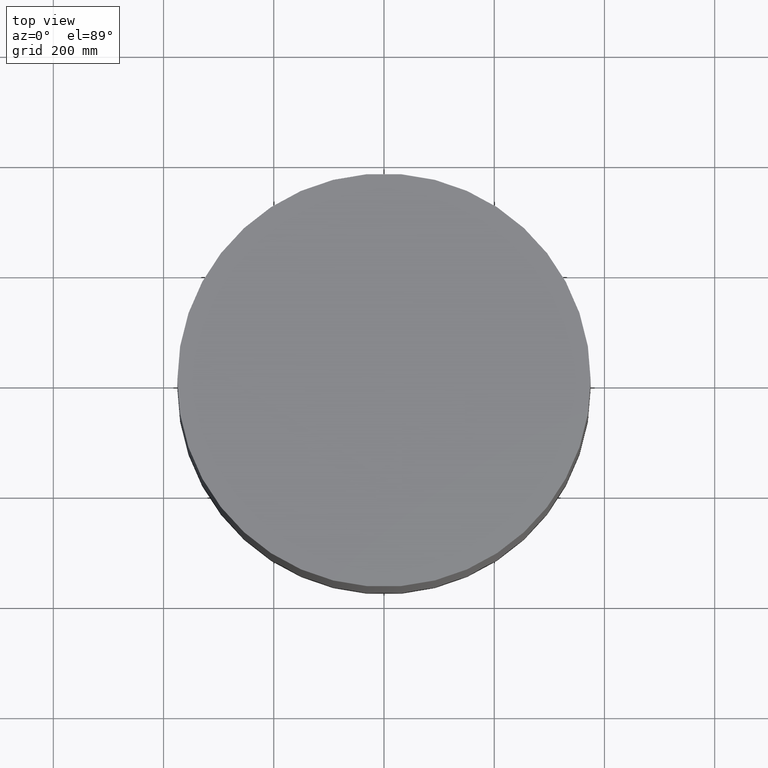
[diagram: clean part render]
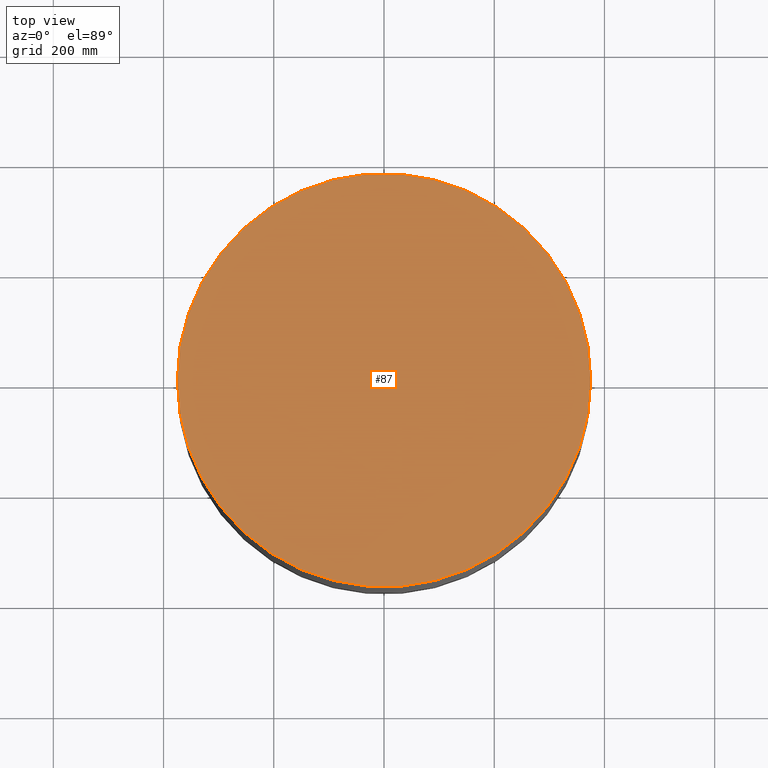
[diagram: same view with one face highlighted and labeled with its STEP entity id]
A machine part, top view. The second image highlights one B-rep face of the part: STEP entity #87.
In plain terms, the highlighted planar face has unit normal (0, 0, 1).
Its self-contained STEP definition (entity closure, byte-faithful):
#34=CARTESIAN_POINT('',(-375.,0.,800.));
#35=VERTEX_POINT('',#34);
#42=CARTESIAN_POINT('',(375.,-0.,800.));
#43=VERTEX_POINT('',#42);
#44=CARTESIAN_POINT('',(0.,0.,800.));
#45=DIRECTION('',(0.,0.,1.));
#46=DIRECTION('',(1.,0.,-0.));
#47=AXIS2_PLACEMENT_3D('',#44,#45,#46);
#48=CIRCLE('',#47,375.);
#49=EDGE_CURVE('',#43,#35,#48,.T.);
#51=CARTESIAN_POINT('',(0.,0.,800.));
#52=DIRECTION('',(0.,0.,1.));
#53=DIRECTION('',(1.,0.,-0.));
#54=AXIS2_PLACEMENT_3D('',#51,#52,#53);
#55=CIRCLE('',#54,375.);
#56=EDGE_CURVE('',#35,#43,#55,.T.);
#78=CARTESIAN_POINT('',(0.,0.,800.));
#79=DIRECTION('',(0.,0.,1.));
#80=DIRECTION('',(1.,0.,0.));
#81=AXIS2_PLACEMENT_3D('',#78,#79,#80);
#82=PLANE('',#81);
#83=ORIENTED_EDGE('',*,*,#49,.T.);
#84=ORIENTED_EDGE('',*,*,#56,.T.);
#85=EDGE_LOOP('',(#83,#84));
#86=FACE_BOUND('',#85,.T.);
#87=ADVANCED_FACE('',(#86),#82,.T.);